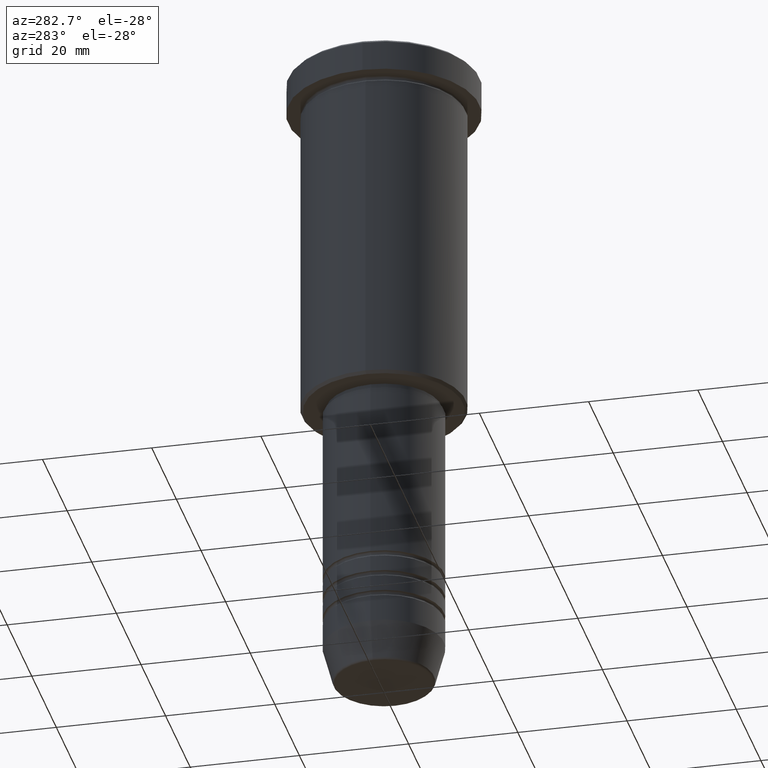
[diagram: clean part render]
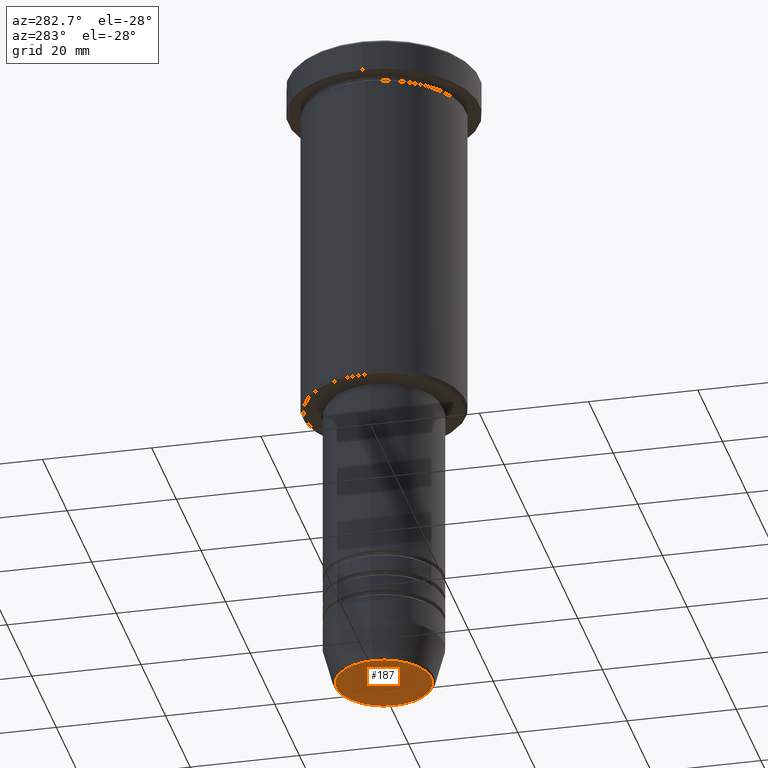
[diagram: same view with one face highlighted and labeled with its STEP entity id]
A machine part, auxiliary view. The second image highlights one B-rep face of the part: STEP entity #187.
In plain terms, the highlighted planar face has unit normal (0, -0, 1).
Its self-contained STEP definition (entity closure, byte-faithful):
#30 = ORIENTED_EDGE ( 'NONE', *, *, #1045, .T. ) ;
#104 = VERTEX_POINT ( 'NONE', #966 ) ;
#109 = EDGE_CURVE ( 'NONE', #249, #104, #798, .T. ) ;
#166 = AXIS2_PLACEMENT_3D ( 'NONE', #213, #682, #667 ) ;
#171 = CARTESIAN_POINT ( 'NONE',  ( -8.740692158992656502, 1.099999016768739653E-15, -121.0000000000000000 ) ) ;
#187 = ADVANCED_FACE ( 'NONE', ( #674 ), #1055, .F. ) ;
#213 = CARTESIAN_POINT ( 'NONE',  ( 0.000000000000000000, 0.000000000000000000, -121.0000000000000000 ) ) ;
#249 = VERTEX_POINT ( 'NONE', #171 ) ;
#300 = DIRECTION ( 'NONE',  ( 1.000000000000000000, 0.000000000000000000, 0.000000000000000000 ) ) ;
#326 = EDGE_LOOP ( 'NONE', ( #30, #1110 ) ) ;
#348 = CARTESIAN_POINT ( 'NONE',  ( 0.000000000000000000, 0.000000000000000000, -121.0000000000000000 ) ) ;
#434 = CIRCLE ( 'NONE', #166, 8.740692158992656502 ) ;
#461 = DIRECTION ( 'NONE',  ( 0.000000000000000000, 0.000000000000000000, -1.000000000000000000 ) ) ;
#596 = CARTESIAN_POINT ( 'NONE',  ( 0.000000000000000000, 0.000000000000000000, -121.0000000000000000 ) ) ;
#620 = AXIS2_PLACEMENT_3D ( 'NONE', #596, #945, #300 ) ;
#643 = DIRECTION ( 'NONE',  ( 1.000000000000000000, 0.000000000000000000, 0.000000000000000000 ) ) ;
#667 = DIRECTION ( 'NONE',  ( 1.000000000000000000, 0.000000000000000000, 0.000000000000000000 ) ) ;
#674 = FACE_OUTER_BOUND ( 'NONE', #326, .T. ) ;
#682 = DIRECTION ( 'NONE',  ( 0.000000000000000000, 0.000000000000000000, -1.000000000000000000 ) ) ;
#798 = CIRCLE ( 'NONE', #908, 8.740692158992656502 ) ;
#908 = AXIS2_PLACEMENT_3D ( 'NONE', #348, #461, #643 ) ;
#945 = DIRECTION ( 'NONE',  ( 0.000000000000000000, -0.000000000000000000, 1.000000000000000000 ) ) ;
#966 = CARTESIAN_POINT ( 'NONE',  ( 8.740692158992656502, 0.000000000000000000, -121.0000000000000000 ) ) ;
#1045 = EDGE_CURVE ( 'NONE', #104, #249, #434, .T. ) ;
#1055 = PLANE ( 'NONE',  #620 ) ;
#1110 = ORIENTED_EDGE ( 'NONE', *, *, #109, .T. ) ;